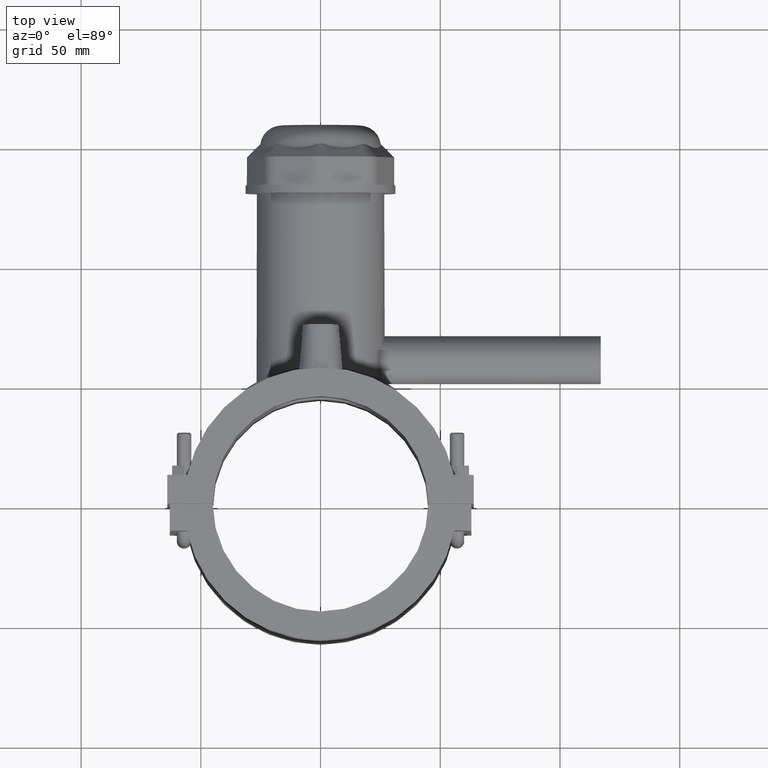
[diagram: clean part render]
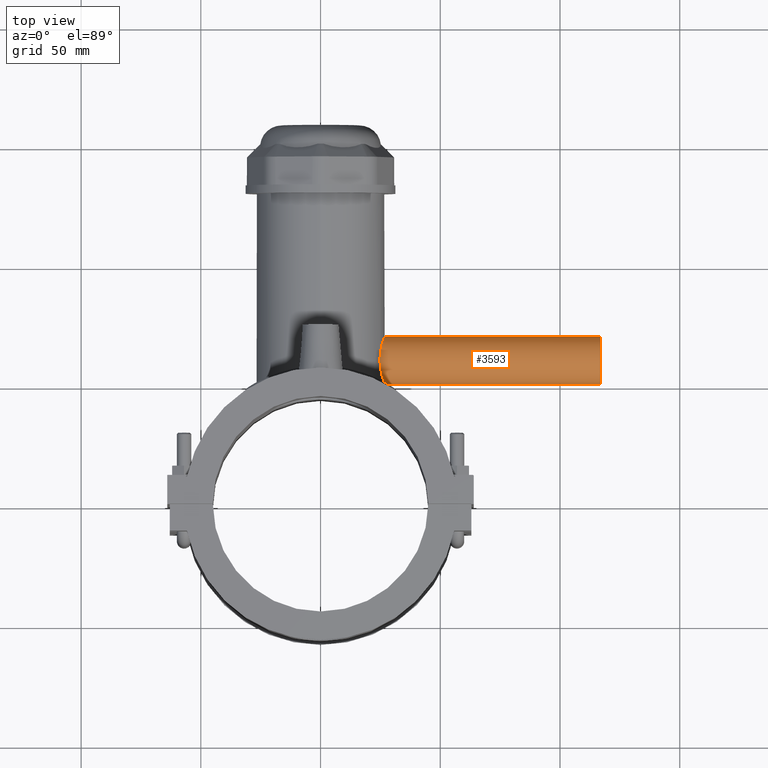
[diagram: same view with one face highlighted and labeled with its STEP entity id]
A machine part, top view. The second image highlights one B-rep face of the part: STEP entity #3593.
In plain terms, the highlighted cylindrical surface (bore or boss wall) has radius 10 mm, axis along (1, 0, 0).
Its self-contained STEP definition (entity closure, byte-faithful):
#783=CIRCLE('',#3821,10.);
#908=FACE_BOUND('',#1188,.T.);
#961=FACE_OUTER_BOUND('',#1187,.T.);
#1187=EDGE_LOOP('',(#2456,#2457,#2458));
#1188=EDGE_LOOP('',(#2459));
#1462=B_SPLINE_CURVE_WITH_KNOTS('',3,(#5209,#5210,#5211,#5212,#5213,#5214,
#5215,#5216,#5217,#5218),.UNSPECIFIED.,.F.,.F.,(4,2,2,2,4),(1.34030727994941,
1.46295896579092,1.69628648260721,1.92961399942351,2.05226568526502),
 .UNSPECIFIED.);
#1463=B_SPLINE_CURVE_WITH_KNOTS('',3,(#5220,#5221,#5222,#5223,#5224,#5225,
#5226,#5227,#5228,#5229),.UNSPECIFIED.,.F.,.F.,(4,2,2,2,4),(0.,0.380862445274796,
0.761724890549592,1.14230071311172,1.186781438505),.UNSPECIFIED.);
#1464=B_SPLINE_CURVE_WITH_KNOTS('',3,(#5230,#5231,#5232,#5233,#5234,#5235,
#5236,#5237,#5238,#5239,#5240,#5241,#5242,#5243,#5244,#5245,#5246,#5247,
#5248,#5249,#5250,#5251,#5252,#5253,#5254,#5255),.UNSPECIFIED.,.F.,.F.,
(4,2,2,2,2,2,2,2,2,2,2,2,4),(1.85897163284268,1.90345235823596,2.28402818079809,
2.66489062607288,3.04575307134768,3.42661551662247,3.80747796189727,4.18805378445939,
4.56862960702152,4.94920542958364,5.32978125214576,5.71064369742056,6.09150614269535),
 .UNSPECIFIED.);
#1572=VERTEX_POINT('',#5207);
#1573=VERTEX_POINT('',#5208);
#1574=VERTEX_POINT('',#5219);
#1575=VERTEX_POINT('',#5256);
#1923=EDGE_CURVE('',#1572,#1573,#1462,.T.);
#1924=EDGE_CURVE('',#1574,#1572,#1463,.T.);
#1925=EDGE_CURVE('',#1573,#1574,#1464,.T.);
#1926=EDGE_CURVE('',#1575,#1575,#783,.T.);
#2456=ORIENTED_EDGE('',*,*,#1923,.F.);
#2457=ORIENTED_EDGE('',*,*,#1924,.F.);
#2458=ORIENTED_EDGE('',*,*,#1925,.F.);
#2459=ORIENTED_EDGE('',*,*,#1926,.F.);
#3537=CYLINDRICAL_SURFACE('',#3820,10.);
#3593=ADVANCED_FACE('',(#961,#908),#3537,.T.);
#3820=AXIS2_PLACEMENT_3D('',#5206,#4152,#4153);
#3821=AXIS2_PLACEMENT_3D('',#5257,#4154,#4155);
#4152=DIRECTION('center_axis',(1.,0.,0.));
#4153=DIRECTION('ref_axis',(0.,1.,0.));
#4154=DIRECTION('center_axis',(1.,0.,0.));
#4155=DIRECTION('ref_axis',(0.,0.,-1.));
#5206=CARTESIAN_POINT('Origin',(58.5,61.,0.));
#5207=CARTESIAN_POINT('',(26.5571947943461,51.5987250681173,-3.40822969518685));
#5208=CARTESIAN_POINT('',(26.5571947943461,51.5987250681173,3.40822969518689));
#5209=CARTESIAN_POINT('Ctrl Pts',(26.5571947943462,51.5987250681173,-3.40822969518686));
#5210=CARTESIAN_POINT('Ctrl Pts',(26.7949117004733,51.4763752586289,-3.07073947306713));
#5211=CARTESIAN_POINT('Ctrl Pts',(27.0080779454478,51.3645329109714,-2.70457723681071));
#5212=CARTESIAN_POINT('Ctrl Pts',(27.5111274343721,51.0978487886751,-1.58602840086848));
#5213=CARTESIAN_POINT('Ctrl Pts',(27.6895833121411,51.,-0.77775838938765));
#5214=CARTESIAN_POINT('Ctrl Pts',(27.6895833121411,51.,0.77775838938765));
#5215=CARTESIAN_POINT('Ctrl Pts',(27.5111274343721,51.0978487886751,1.58602840086848));
#5216=CARTESIAN_POINT('Ctrl Pts',(27.0080779454478,51.3645329109714,2.70457723681072));
#5217=CARTESIAN_POINT('Ctrl Pts',(26.7949117004733,51.4763752586289,3.07073947306715));
#5218=CARTESIAN_POINT('Ctrl Pts',(26.5571947943461,51.5987250681173,3.40822969518688));
#5219=CARTESIAN_POINT('',(24.837484272768,61.,-10.));
#5220=CARTESIAN_POINT('Ctrl Pts',(24.837484272768,61.,-10.));
#5221=CARTESIAN_POINT('Ctrl Pts',(24.837484272768,59.7304585157507,-10.));
#5222=CARTESIAN_POINT('Ctrl Pts',(24.9450902199432,58.3858536171783,-9.74374981724872));
#5223=CARTESIAN_POINT('Ctrl Pts',(25.321243025273,55.9263796122364,-8.71968003966443));
#5224=CARTESIAN_POINT('Ctrl Pts',(25.5830982035763,54.8102663403624,-7.95240196409332));
#5225=CARTESIAN_POINT('Ctrl Pts',(26.0655585092551,53.0482612947515,-6.19039691848243));
#5226=CARTESIAN_POINT('Ctrl Pts',(26.3191979536533,52.2804769122872,-5.07402695561238));
#5227=CARTESIAN_POINT('Ctrl Pts',(26.5185148052806,51.7083827169479,-3.70001444811899));
#5228=CARTESIAN_POINT('Ctrl Pts',(26.5383925955005,51.6518384661322,-3.55473791263769));
#5229=CARTESIAN_POINT('Ctrl Pts',(26.5571947943461,51.5987250681173,-3.40822969518685));
#5230=CARTESIAN_POINT('Ctrl Pts',(26.5571947943461,51.5987250681173,3.40822969518689));
#5231=CARTESIAN_POINT('Ctrl Pts',(26.5383925955005,51.6518384661322,3.55473791263772));
#5232=CARTESIAN_POINT('Ctrl Pts',(26.5185148052806,51.7083827169479,3.700014448119));
#5233=CARTESIAN_POINT('Ctrl Pts',(26.3191979536533,52.2804769122872,5.07402695561238));
#5234=CARTESIAN_POINT('Ctrl Pts',(26.0655585092551,53.0482612947515,6.19039691848243));
#5235=CARTESIAN_POINT('Ctrl Pts',(25.5830982035763,54.8102663403624,7.95240196409332));
#5236=CARTESIAN_POINT('Ctrl Pts',(25.321243025273,55.9263796122364,8.71968003966443));
#5237=CARTESIAN_POINT('Ctrl Pts',(24.9450902199432,58.3858536171783,9.74374981724872));
#5238=CARTESIAN_POINT('Ctrl Pts',(24.837484272768,59.7304585157507,10.));
#5239=CARTESIAN_POINT('Ctrl Pts',(24.837484272768,62.2695414842493,10.));
#5240=CARTESIAN_POINT('Ctrl Pts',(24.9450902199432,63.6141463828217,9.74374981724872));
#5241=CARTESIAN_POINT('Ctrl Pts',(25.321243025273,66.0736203877636,8.71968003966443));
#5242=CARTESIAN_POINT('Ctrl Pts',(25.5830982035763,67.1897336596376,7.95240196409332));
#5243=CARTESIAN_POINT('Ctrl Pts',(26.0655585092551,68.9517387052485,6.19039691848244));
#5244=CARTESIAN_POINT('Ctrl Pts',(26.3191979536533,69.7195230877128,5.07402695561239));
#5245=CARTESIAN_POINT('Ctrl Pts',(26.6761159925515,70.7439760458971,2.61357343353275));
#5246=CARTESIAN_POINT('Ctrl Pts',(26.775,71.,1.26858607520708));
#5247=CARTESIAN_POINT('Ctrl Pts',(26.775,71.,-1.26858607520708));
#5248=CARTESIAN_POINT('Ctrl Pts',(26.6761159925515,70.7439760458971,-2.61357343353275));
#5249=CARTESIAN_POINT('Ctrl Pts',(26.3191979536533,69.7195230877128,-5.07402695561238));
#5250=CARTESIAN_POINT('Ctrl Pts',(26.0655585092551,68.9517387052485,-6.19039691848243));
#5251=CARTESIAN_POINT('Ctrl Pts',(25.5830982035763,67.1897336596376,-7.95240196409332));
#5252=CARTESIAN_POINT('Ctrl Pts',(25.321243025273,66.0736203877636,-8.71968003966443));
#5253=CARTESIAN_POINT('Ctrl Pts',(24.9450902199432,63.6141463828217,-9.74374981724873));
#5254=CARTESIAN_POINT('Ctrl Pts',(24.837484272768,62.2695414842493,-10.));
#5255=CARTESIAN_POINT('Ctrl Pts',(24.837484272768,61.,-10.));
#5256=CARTESIAN_POINT('',(117.,71.,0.));
#5257=CARTESIAN_POINT('Origin',(117.,61.,0.));